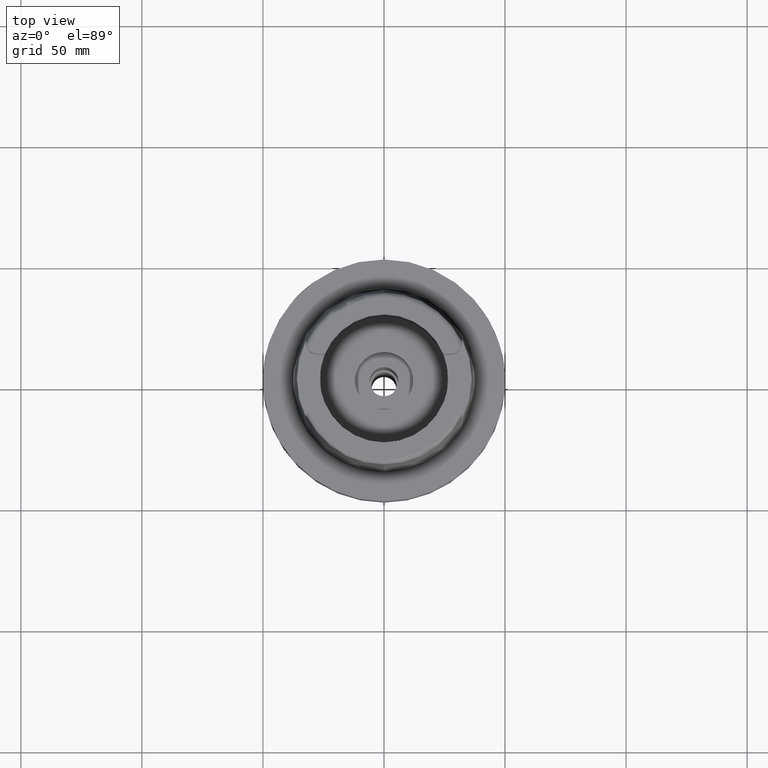
[diagram: clean part render]
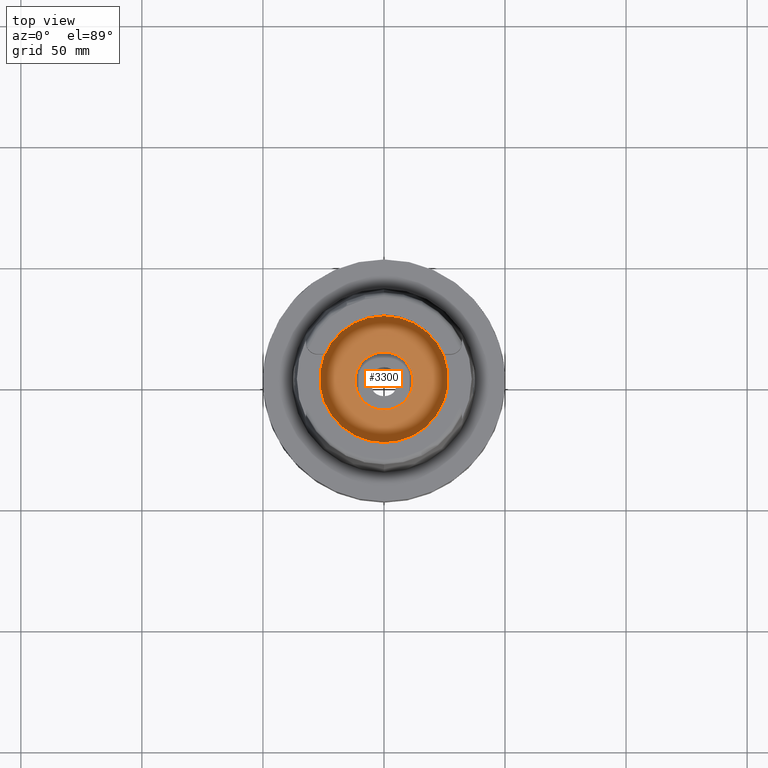
[diagram: same view with one face highlighted and labeled with its STEP entity id]
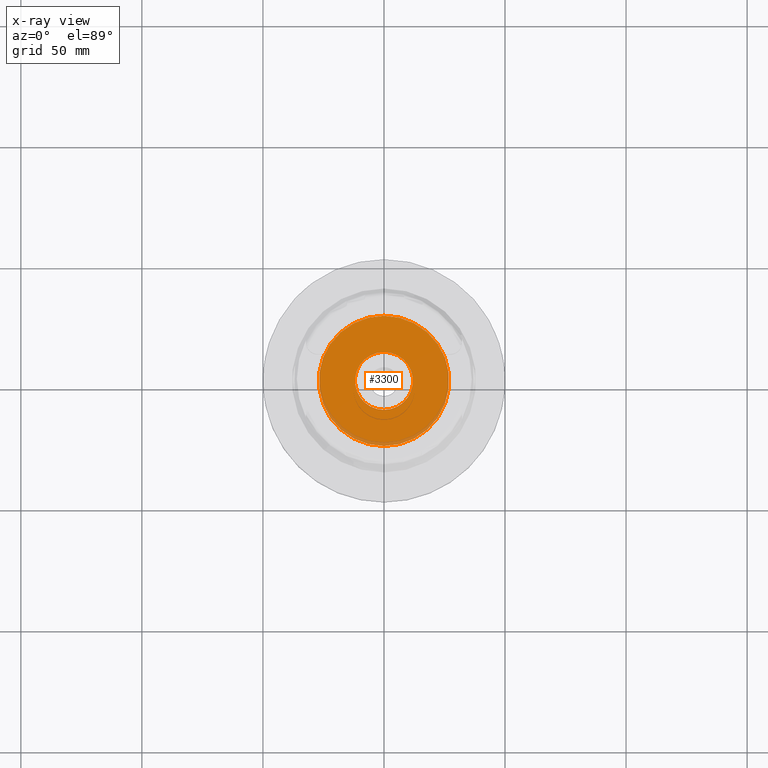
[diagram: x-ray of the same camera — body ghosted, the highlighted face saturated]
A machine part, top view. The second image highlights one B-rep face of the part: STEP entity #3300.
The next image is the same camera in x-ray: the body ghosted, the highlighted face saturated — about 5% of this face is hidden behind the body in this view.
In plain terms, the highlighted planar face has unit normal (0, 0, 1).
Its self-contained STEP definition (entity closure, byte-faithful):
#823=CARTESIAN_POINT('',(0.E0,0.E0,-1.245E1));
#824=DIRECTION('',(0.E0,0.E0,-1.E0));
#825=DIRECTION('',(0.E0,-1.E0,0.E0));
#826=AXIS2_PLACEMENT_3D('',#823,#824,#825);
#831=CARTESIAN_POINT('',(0.E0,0.E0,-1.245E1));
#832=DIRECTION('',(0.E0,0.E0,-1.E0));
#833=DIRECTION('',(0.E0,1.E0,0.E0));
#834=AXIS2_PLACEMENT_3D('',#831,#832,#833);
#839=CARTESIAN_POINT('',(0.E0,0.E0,-1.245E1));
#840=DIRECTION('',(0.E0,0.E0,1.E0));
#841=DIRECTION('',(0.E0,-1.E0,0.E0));
#842=AXIS2_PLACEMENT_3D('',#839,#840,#841);
#847=CARTESIAN_POINT('',(0.E0,0.E0,-1.245E1));
#848=DIRECTION('',(0.E0,0.E0,1.E0));
#849=DIRECTION('',(0.E0,1.E0,0.E0));
#850=AXIS2_PLACEMENT_3D('',#847,#848,#849);
#2506=CARTESIAN_POINT('',(0.E0,2.69E1,-1.245E1));
#2507=VERTEX_POINT('',#2506);
#2508=CARTESIAN_POINT('',(0.E0,-2.69E1,-1.245E1));
#2509=VERTEX_POINT('',#2508);
#2510=CARTESIAN_POINT('',(0.E0,-1.2E1,-1.245E1));
#2511=CARTESIAN_POINT('',(0.E0,1.2E1,-1.245E1));
#2512=VERTEX_POINT('',#2510);
#2513=VERTEX_POINT('',#2511);
#3285=CARTESIAN_POINT('',(0.E0,0.E0,-1.245E1));
#3286=DIRECTION('',(0.E0,0.E0,1.E0));
#3287=DIRECTION('',(0.E0,1.E0,0.E0));
#3288=AXIS2_PLACEMENT_3D('',#3285,#3286,#3287);
#3289=PLANE('',#3288);
#3290=ORIENTED_EDGE('',*,*,#3264,.T.);
#3291=ORIENTED_EDGE('',*,*,#3280,.T.);
#3292=EDGE_LOOP('',(#3290,#3291));
#3293=FACE_OUTER_BOUND('',#3292,.F.);
#3295=ORIENTED_EDGE('',*,*,#3294,.T.);
#3297=ORIENTED_EDGE('',*,*,#3296,.T.);
#3298=EDGE_LOOP('',(#3295,#3297));
#3299=FACE_BOUND('',#3298,.F.);
#827=CIRCLE('',#826,2.69E1);
#835=CIRCLE('',#834,2.69E1);
#843=CIRCLE('',#842,1.2E1);
#851=CIRCLE('',#850,1.2E1);
#3264=EDGE_CURVE('',#2509,#2507,#827,.T.);
#3280=EDGE_CURVE('',#2507,#2509,#835,.T.);
#3294=EDGE_CURVE('',#2512,#2513,#843,.T.);
#3296=EDGE_CURVE('',#2513,#2512,#851,.T.);
#3300=ADVANCED_FACE('',(#3293,#3299),#3289,.T.);